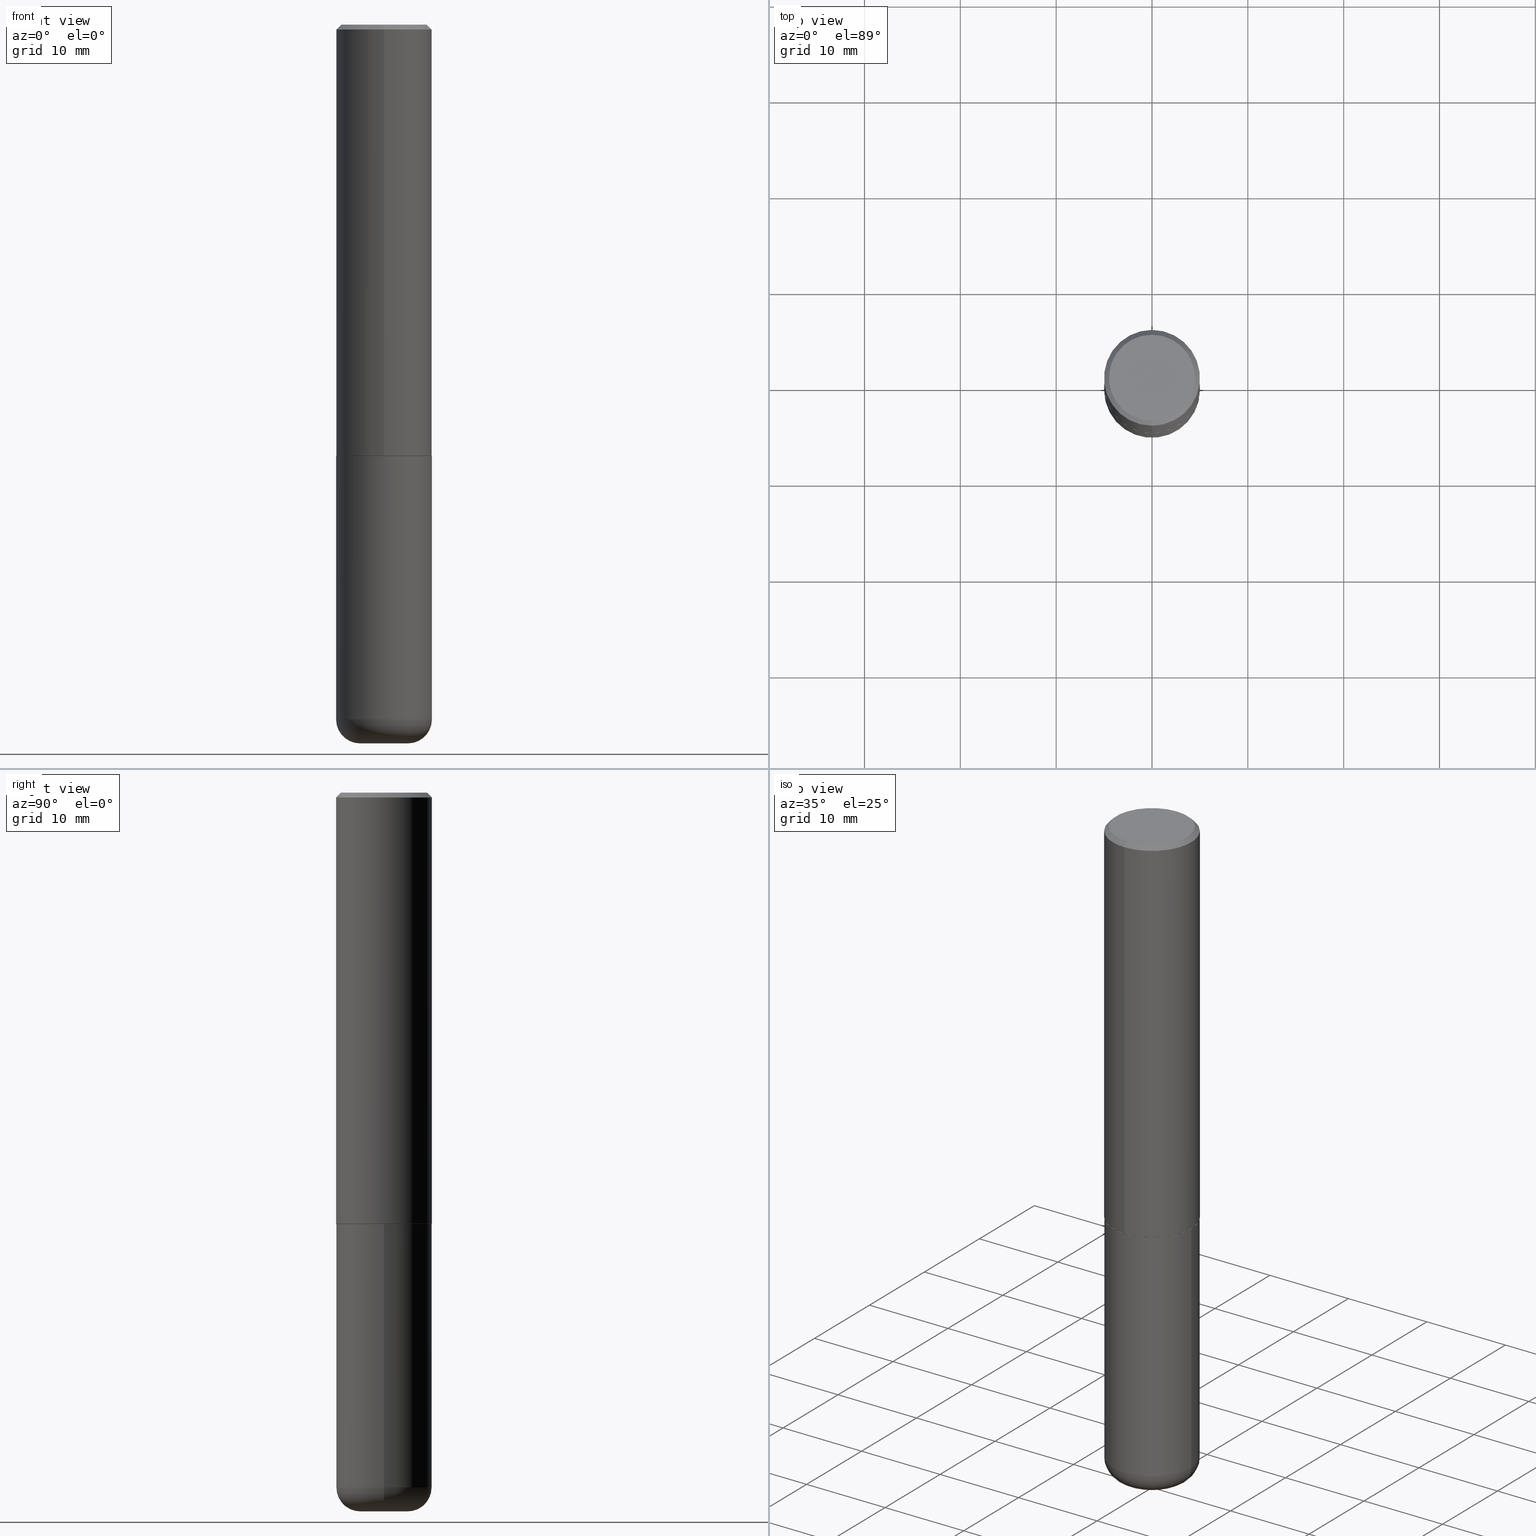
[diagram: canonical four-view strip — front | top / right | iso, engineering-drawing reading convention]
A machine part, canonical four-view strip (front | top / right | iso — engineering-drawing reading convention). The complete STEP part file that produces these views, byte-faithful:
ISO-10303-21;
HEADER;
FILE_DESCRIPTION (( 'STEP AP203' ),
    '1' );
FILE_NAME ('47530.STEP',
    '2024-03-06T07:44:59',
    ( '' ),
    ( '' ),
    'SwSTEP 2.0',
    'SolidWorks 2023',
    '' );
FILE_SCHEMA (( 'CONFIG_CONTROL_DESIGN' ));
ENDSEC;

DATA;
#1 = ORIENTED_EDGE ( 'NONE', *, *, #199, .T. ) ;
#3 = AXIS2_PLACEMENT_3D ( 'NONE', #74, #255, #385 ) ;
#2 = SECURITY_CLASSIFICATION_LEVEL ( 'unclassified' ) ;
#4 = CIRCLE ( 'NONE', #61, 0.09840000000000037605 ) ;
#5 = DIRECTION ( 'NONE',  ( 1.000000000000000000, -6.982962677686264344E-15, 4.883557194083112340E-29 ) ) ;
#6 = EDGE_CURVE ( 'NONE', #149, #117, #176, .T. ) ;
#7 = COORDINATED_UNIVERSAL_TIME_OFFSET ( 5, 0, .BEHIND. ) ;
#8 = LINE ( 'NONE', #207, #161 ) ;
#9 = VERTEX_POINT ( 'NONE', #370 ) ;
#10 = PERSON_AND_ORGANIZATION ( #89, #94 ) ;
#11 = DIRECTION ( 'NONE',  ( -2.443970379688463607E-29, 3.493627170871520955E-15, 1.000000000000000000 ) ) ;
#12 = ORIENTED_EDGE ( 'NONE', *, *, #383, .T. ) ;
#13 = PERSON_AND_ORGANIZATION ( #89, #94 ) ;
#14 = CIRCLE ( 'NONE', #167, 0.1968500000000000250 ) ;
#15 = DIRECTION ( 'NONE',  ( 1.000000000000000000, -6.982962677686267499E-15, 0.000000000000000000 ) ) ;
#16 = DATE_TIME_ROLE ( 'creation_date' ) ;
#17 = DIRECTION ( 'NONE',  ( -6.982962677686265922E-15, -1.000000000000000000, 3.493627170871520561E-15 ) ) ;
#18 = VERTEX_POINT ( 'NONE', #79 ) ;
#19 = DIRECTION ( 'NONE',  ( -2.443970379688463607E-29, 3.493627170871520955E-15, 1.000000000000000000 ) ) ;
#20 = VERTEX_POINT ( 'NONE', #409 ) ;
#21 = CARTESIAN_POINT ( 'NONE',  ( 5.937032679118867305E-45, -8.486919012809721302E-31, -2.429257215415053213E-16 ) ) ;
#22 = ORIENTED_EDGE ( 'NONE', *, *, #187, .T. ) ;
#23 = ORIENTED_EDGE ( 'NONE', *, *, #372, .T. ) ;
#24 = CARTESIAN_POINT ( 'NONE',  ( 4.332637083918205306E-29, -6.185857488028398715E-15, -1.771699999999999608 ) ) ;
#25 = DIRECTION ( 'NONE',  ( -6.982962677686265922E-15, -1.000000000000000000, 3.493627170871521350E-15 ) ) ;
#26 = UNCERTAINTY_MEASURE_WITH_UNIT (LENGTH_MEASURE( 1.000000000000000082E-05 ), #227, 'distance_accuracy_value', 'NONE');
#27 = CLOSED_SHELL ( 'NONE', ( #39, #65, #377, #36, #106, #309 ) ) ;
#28 = DIRECTION ( 'NONE',  ( 6.982962677686265133E-15, 1.000000000000000000, -3.491137977679279029E-15 ) ) ;
#29 = CONICAL_SURFACE ( 'NONE', #129, 0.1968500000000000527, 0.7853981633974479459 ) ;
#30 = AXIS2_PLACEMENT_3D ( 'NONE', #76, #175, #180 ) ;
#31 = CC_DESIGN_APPROVAL ( #293, ( #408 ) ) ;
#32 = CARTESIAN_POINT ( 'NONE',  ( 7.220980290903472425E-29, -1.030964609733604011E-14, -2.952800000000000313 ) ) ;
#33 = EDGE_CURVE ( 'NONE', #306, #265, #368, .T. ) ;
#34 = AXIS2_PLACEMENT_3D ( 'NONE', #297, #262, #264 ) ;
#35 = CARTESIAN_POINT ( 'NONE',  ( 0.000000000000000000, 0.000000000000000000, 0.000000000000000000 ) ) ;
#36 = ADVANCED_FACE ( 'NONE', ( #80 ), #407, .T. ) ;
#37 = DIRECTION ( 'NONE',  ( -6.982962677686265922E-15, -1.000000000000000000, 3.493627170871521350E-15 ) ) ;
#38 = CARTESIAN_POINT ( 'NONE',  ( 4.887940759376938213E-31, -6.987254341743056504E-17, -0.02000000000000004205 ) ) ;
#39 = ADVANCED_FACE ( 'NONE', ( #373 ), #298, .T. ) ;
#40 = ORIENTED_EDGE ( 'NONE', *, *, #45, .T. ) ;
#41 = APPROVAL_PERSON_ORGANIZATION ( #365, #287, #361 ) ;
#42 = EDGE_LOOP ( 'NONE', ( #135, #22, #220, #360 ) ) ;
#43 = CARTESIAN_POINT ( 'NONE',  ( 1.398703375343757985E-15, 0.1968500000000001360, -6.877205085860593881E-16 ) ) ;
#44 = ORIENTED_EDGE ( 'NONE', *, *, #111, .F. ) ;
#45 = EDGE_CURVE ( 'NONE', #306, #149, #313, .T. ) ;
#46 = ORIENTED_EDGE ( 'NONE', *, *, #271, .F. ) ;
#47 = CALENDAR_DATE ( 2024, 6, 3 ) ;
#48 = CARTESIAN_POINT ( 'NONE',  ( -1.367613240424812009E-15, -0.1958500000000061858, -1.771699999999998720 ) ) ;
#49 = CLOSED_SHELL ( 'NONE', ( #357, #170, #85, #380, #245, #174, #338, #256 ) ) ;
#50 = AXIS2_PLACEMENT_3D ( 'NONE', #312, #415, #344 ) ;
#51 = ORIENTED_EDGE ( 'NONE', *, *, #315, .F. ) ;
#52 = APPROVAL_ROLE ( '' ) ;
#53 = CARTESIAN_POINT ( 'NONE',  ( 4.332637083918205306E-29, -6.185857488028398715E-15, -1.771699999999999608 ) ) ;
#54 = DIRECTION ( 'NONE',  ( 1.000000000000000000, -6.982962677686265922E-15, 4.876176775795935793E-29 ) ) ;
#55 = VECTOR ( 'NONE', #57, 39.37007874015748143 ) ;
#56 = AXIS2_PLACEMENT_3D ( 'NONE', #381, #92, #351 ) ;
#57 = DIRECTION ( 'NONE',  ( -2.445468806185136877E-29, 3.491481338843145188E-15, 1.000000000000000000 ) ) ;
#58 = CARTESIAN_POINT ( 'NONE',  ( 4.329982321694049862E-29, -6.189659258633071898E-15, -1.771699999999999608 ) ) ;
#59 = CARTESIAN_POINT ( 'NONE',  ( -1.350489030861325626E-15, -0.1968500000000001082, -0.01999999999999935510 ) ) ;
#60 = DIRECTION ( 'NONE',  ( -2.443970379688463607E-29, 3.493627170871520955E-15, 1.000000000000000000 ) ) ;
#61 = AXIS2_PLACEMENT_3D ( 'NONE', #277, #224, #118 ) ;
#62 = AXIS2_PLACEMENT_3D ( 'NONE', #53, #273, #198 ) ;
#63 = DIRECTION ( 'NONE',  ( 4.937700262164545676E-15, 0.7071067811865447972, -0.7071067811865502373 ) ) ;
#64 = ORIENTED_EDGE ( 'NONE', *, *, #187, .F. ) ;
#65 = ADVANCED_FACE ( 'NONE', ( #374 ), #330, .T. ) ;
#66 = DIRECTION ( 'NONE',  ( -6.982962677686265922E-15, -1.000000000000000000, 4.184602492209747448E-15 ) ) ;
#67 = EDGE_LOOP ( 'NONE', ( #64, #182, #99, #196 ) ) ;
#68 = PERSON_AND_ORGANIZATION_ROLE ( 'creator' ) ;
#69 = ORIENTED_EDGE ( 'NONE', *, *, #237, .T. ) ;
#70 = CIRCLE ( 'NONE', #282, 0.1968500000000000250 ) ;
#71 = APPROVAL_PERSON_ORGANIZATION ( #169, #293, #52 ) ;
#72 = PRODUCT_RELATED_PRODUCT_CATEGORY ( 'detail', '', ( #130 ) ) ;
#73 = EDGE_LOOP ( 'NONE', ( #358, #247 ) ) ;
#74 = CARTESIAN_POINT ( 'NONE',  ( 6.980346160374851918E-29, -9.966084333593872426E-15, -2.854399999999999604 ) ) ;
#75 = APPROVAL_STATUS ( 'not_yet_approved' ) ;
#76 = CARTESIAN_POINT ( 'NONE',  ( -4.222142515148722183E-29, -2.669684925770544192E-14, -2.952800000000000313 ) ) ;
#77 = CIRCLE ( 'NONE', #34, 0.1968500000000000527 ) ;
#78 = PRODUCT_DEFINITION_FORMATION_WITH_SPECIFIED_SOURCE ( 'ANY', '', #130, .NOT_KNOWN. ) ;
#79 = CARTESIAN_POINT ( 'NONE',  ( -1.281884050883611478E-15, -0.1768500000000002570, 3.749222436271242413E-16 ) ) ;
#80 = FACE_OUTER_BOUND ( 'NONE', #392, .T. ) ;
#81 = CARTESIAN_POINT ( 'NONE',  ( 1.391597947986199181E-15, 0.1958499999999938346, -1.771700000000000497 ) ) ;
#82 = DIRECTION ( 'NONE',  ( -2.445468806185136597E-29, 3.491481338843145583E-15, 1.000000000000000000 ) ) ;
#83 = DIRECTION ( 'NONE',  ( -2.443970379688463607E-29, 3.493627170871520955E-15, 1.000000000000000000 ) ) ;
#84 = AXIS2_PLACEMENT_3D ( 'NONE', #270, #19, #366 ) ;
#85 = ADVANCED_FACE ( 'NONE', ( #399 ), #119, .T. ) ;
#86 = EDGE_LOOP ( 'NONE', ( #23, #238, #336, #396 ) ) ;
#87 = DIRECTION ( 'NONE',  ( 1.000000000000000000, -6.982962677686267499E-15, 0.000000000000000000 ) ) ;
#88 = CARTESIAN_POINT ( 'NONE',  ( 5.937032679118867305E-45, -8.486919012809721302E-31, -2.429257215415053213E-16 ) ) ;
#89 = PERSON ( 'UNSPECIFIED', 'UNSPECIFIED', 'UNSPECIFIED', ('UNSPECIFIED'), ('UNSPECIFIED'), ('UNSPECIFIED') ) ;
#90 = AXIS2_PLACEMENT_3D ( 'NONE', #32, #195, #190 ) ;
#91 = CC_DESIGN_SECURITY_CLASSIFICATION ( #168, ( #78 ) ) ;
#92 = DIRECTION ( 'NONE',  ( -2.443970379688463607E-29, 3.493627170871520955E-15, 1.000000000000000000 ) ) ;
#93 = AXIS2_PLACEMENT_3D ( 'NONE', #58, #122, #120 ) ;
#94 = ORGANIZATION ( 'UNSPECIFIED', 'UNSPECIFIED', '' ) ;
#95 = DIRECTION ( 'NONE',  ( -2.443970379688463607E-29, 3.493627170871520955E-15, 1.000000000000000000 ) ) ;
#96 = CALENDAR_DATE ( 2024, 6, 3 ) ;
#97 = FACE_OUTER_BOUND ( 'NONE', #67, .T. ) ;
#98 = EDGE_LOOP ( 'NONE', ( #324, #215, #230, #406 ) ) ;
#99 = ORIENTED_EDGE ( 'NONE', *, *, #410, .T. ) ;
#101 = VECTOR ( 'NONE', #305, 39.37007874015748143 ) ;
#100 = PERSON_AND_ORGANIZATION_ROLE ( 'design_owner' ) ;
#102 = AXIS2_PLACEMENT_3D ( 'NONE', #231, #194, #311 ) ;
#103 = DIRECTION ( 'NONE',  ( -6.982962677686265922E-15, -1.000000000000000000, 4.184602492209747448E-15 ) ) ;
#104 = APPROVAL_DATE_TIME ( #393, #226 ) ;
#105 = CARTESIAN_POINT ( 'NONE',  ( 0.09845000000000002360, -1.099711877295425424E-14, -2.952800000000000313 ) ) ;
#106 = ADVANCED_FACE ( 'NONE', ( #97 ), #412, .T. ) ;
#107 = ORIENTED_EDGE ( 'NONE', *, *, #326, .T. ) ;
#108 = DATE_AND_TIME ( #388, #353 ) ;
#109 = PLANE ( 'NONE',  #62 ) ;
#110 = ORIENTED_EDGE ( 'NONE', *, *, #221, .F. ) ;
#111 = EDGE_CURVE ( 'NONE', #114, #390, #411, .T. ) ;
#112 = LINE ( 'NONE', #81, #367 ) ;
#113 = CIRCLE ( 'NONE', #150, 0.1968500000000000250 ) ;
#114 = VERTEX_POINT ( 'NONE', #320 ) ;
#115 = ORIENTED_EDGE ( 'NONE', *, *, #216, .T. ) ;
#116 = CC_DESIGN_PERSON_AND_ORGANIZATION_ASSIGNMENT ( #261, #68, ( #78 ) ) ;
#117 = VERTEX_POINT ( 'NONE', #343 ) ;
#118 = DIRECTION ( 'NONE',  ( 1.000000000000000000, -6.982962677686273810E-15, 0.000000000000000000 ) ) ;
#119 = CONICAL_SURFACE ( 'NONE', #375, 0.1968500000000000527, 0.7853981633974479459 ) ;
#120 = DIRECTION ( 'NONE',  ( -6.982962677686265922E-15, -1.000000000000000000, 4.184602492209747448E-15 ) ) ;
#121 = APPROVAL_PERSON_ORGANIZATION ( #13, #226, #267 ) ;
#122 = DIRECTION ( 'NONE',  ( -2.443970379688463607E-29, 3.493627170871520955E-15, 1.000000000000000000 ) ) ;
#123 = DIRECTION ( 'NONE',  ( 1.000000000000000000, -6.982962677686267499E-15, 0.000000000000000000 ) ) ;
#124 = CC_DESIGN_PERSON_AND_ORGANIZATION_ASSIGNMENT ( #294, #100, ( #130 ) ) ;
#125 =( LENGTH_UNIT ( ) NAMED_UNIT ( * ) SI_UNIT ( $, .METRE. ) );
#126 = APPLICATION_PROTOCOL_DEFINITION ( 'international standard', 'config_control_design', 1994, #235 ) ;
#127 = EDGE_LOOP ( 'NONE', ( #233, #107, #285, #44 ) ) ;
#128 = DIRECTION ( 'NONE',  ( 2.443970379688463607E-29, -3.493627170871520561E-15, -1.000000000000000000 ) ) ;
#129 = AXIS2_PLACEMENT_3D ( 'NONE', #218, #371, #310 ) ;
#130 = PRODUCT ( '47530', '47530', '', ( #193 ) ) ;
#131 = APPROVAL_DATE_TIME ( #328, #293 ) ;
#132 = CARTESIAN_POINT ( 'NONE',  ( 0.1968500000000001915, -1.134068053669641561E-14, -2.854399999999999604 ) ) ;
#133 = EDGE_CURVE ( 'NONE', #9, #208, #201, .T. ) ;
#134 = DIRECTION ( 'NONE',  ( -4.937700262164969294E-15, -0.7071067811866054154, 0.7071067811864896191 ) ) ;
#135 = ORIENTED_EDGE ( 'NONE', *, *, #206, .T. ) ;
#136 = CC_DESIGN_PERSON_AND_ORGANIZATION_ASSIGNMENT ( #333, #139, ( #408 ) ) ;
#137 = DIRECTION ( 'NONE',  ( -4.851104656540961908E-15, -0.7071067811865496822, -0.7071067811865453523 ) ) ;
#138 = ORIENTED_EDGE ( 'NONE', *, *, #318, .F. ) ;
#139 = PERSON_AND_ORGANIZATION_ROLE ( 'creator' ) ;
#140 = CIRCLE ( 'NONE', #211, 0.1768500000000002570 ) ;
#141 = PRODUCT_DEFINITION_SHAPE ( 'NONE', 'NONE',  #408 ) ;
#142 = DIRECTION ( 'NONE',  ( -2.443970379688463326E-29, 3.493627170871520561E-15, 1.000000000000000000 ) ) ;
#143 = ORIENTED_EDGE ( 'NONE', *, *, #206, .F. ) ;
#144 = CALENDAR_DATE ( 2024, 6, 3 ) ;
#145 = FACE_OUTER_BOUND ( 'NONE', #292, .T. ) ;
#146 = ORIENTED_EDGE ( 'NONE', *, *, #33, .F. ) ;
#147 = MANIFOLD_SOLID_BREP ( 'Body-Move/Copy2[2]', #49 ) ;
#148 = DIRECTION ( 'NONE',  ( -6.982962677686265922E-15, -1.000000000000000000, 4.163344669033670112E-15 ) ) ;
#149 = VERTEX_POINT ( 'NONE', #132 ) ;
#150 = AXIS2_PLACEMENT_3D ( 'NONE', #228, #160, #123 ) ;
#151 = ORIENTED_EDGE ( 'NONE', *, *, #317, .F. ) ;
#152 = CC_DESIGN_PERSON_AND_ORGANIZATION_ASSIGNMENT ( #10, #258, ( #168 ) ) ;
#153 = DIRECTION ( 'NONE',  ( 1.000000000000000000, -6.982962677686265922E-15, 4.876176775795935793E-29 ) ) ;
#154 = CARTESIAN_POINT ( 'NONE',  ( 1.374596203102542200E-15, 0.1968499999999999694, -0.02000000000000072900 ) ) ;
#155 = CYLINDRICAL_SURFACE ( 'NONE', #359, 0.1968500000000001360 ) ;
#156 = CIRCLE ( 'NONE', #322, 0.1968500000000000527 ) ;
#157 = CARTESIAN_POINT ( 'NONE',  ( 1.374596203102542200E-15, 0.1968499999999999694, -0.02000000000000072900 ) ) ;
#158 = LOCAL_TIME ( 2, 44, 59.00000000000000000, #291 ) ;
#159 = DIRECTION ( 'NONE',  ( 5.024295867788490741E-15, 0.7071067811866103003, 0.7071067811864847341 ) ) ;
#160 = DIRECTION ( 'NONE',  ( -2.445468806185136597E-29, 3.491481338843145583E-15, 1.000000000000000000 ) ) ;
#161 = VECTOR ( 'NONE', #134, 39.37007874015748143 ) ;
#162 = DIRECTION ( 'NONE',  ( 0.000000000000000000, 0.000000000000000000, 1.000000000000000000 ) ) ;
#163 = ORIENTED_EDGE ( 'NONE', *, *, #334, .T. ) ;
#164 = PLANE ( 'NONE',  #405 ) ;
#165 = DIRECTION ( 'NONE',  ( -2.443970379688463607E-29, 3.493627170871520955E-15, 1.000000000000000000 ) ) ;
#166 = EDGE_CURVE ( 'NONE', #390, #205, #156, .T. ) ;
#167 = AXIS2_PLACEMENT_3D ( 'NONE', #401, #362, #404 ) ;
#168 = SECURITY_CLASSIFICATION ( '', '', #2 ) ;
#169 = PERSON_AND_ORGANIZATION ( #89, #94 ) ;
#170 = ADVANCED_FACE ( 'NONE', ( #389 ), #155, .T. ) ;
#171 = EDGE_LOOP ( 'NONE', ( #143, #110 ) ) ;
#172 = APPROVAL_STATUS ( 'not_yet_approved' ) ;
#173 = CARTESIAN_POINT ( 'NONE',  ( 4.327538351314362007E-29, -6.186165631462201115E-15, -1.770699999999999497 ) ) ;
#174 = ADVANCED_FACE ( 'NONE', ( #342 ), #244, .T. ) ;
#175 = DIRECTION ( 'NONE',  ( 2.438088387897960049E-29, -3.491481338843145188E-15, -1.000000000000000000 ) ) ;
#176 = LINE ( 'NONE', #276, #55 ) ;
#177 = COORDINATED_UNIVERSAL_TIME_OFFSET ( 5, 0, .BEHIND. ) ;
#178 = CARTESIAN_POINT ( 'NONE',  ( 4.329982321694049862E-29, -6.189659258633071898E-15, -1.771699999999999608 ) ) ;
#179 = EDGE_LOOP ( 'NONE', ( #263, #272, #51, #260 ) ) ;
#180 = DIRECTION ( 'NONE',  ( -1.000000000000000000, 6.982962677686265922E-15, -4.876176775795935793E-29 ) ) ;
#181 = VERTEX_POINT ( 'NONE', #185 ) ;
#182 = ORIENTED_EDGE ( 'NONE', *, *, #221, .T. ) ;
#183 = CIRCLE ( 'NONE', #416, 0.1958499999999999963 ) ;
#184 = CARTESIAN_POINT ( 'NONE',  ( 0.000000000000000000, 0.000000000000000000, 0.000000000000000000 ) ) ;
#185 = CARTESIAN_POINT ( 'NONE',  ( -0.09845000000000002360, -9.088748866115164767E-15, -2.952800000000000313 ) ) ;
#186 = CARTESIAN_POINT ( 'NONE',  ( 4.887940759376938213E-31, -6.987254341743056504E-17, -0.02000000000000004205 ) ) ;
#187 = EDGE_CURVE ( 'NONE', #181, #306, #341, .T. ) ;
#188 = AXIS2_PLACEMENT_3D ( 'NONE', #249, #240, #15 ) ;
#189 = CIRCLE ( 'NONE', #192, 0.1958499999999999963 ) ;
#190 = DIRECTION ( 'NONE',  ( 1.000000000000000000, -6.982962677686273021E-15, 0.000000000000000000 ) ) ;
#191 = CC_DESIGN_DATE_AND_TIME_ASSIGNMENT ( #300, #16, ( #408 ) ) ;
#192 = AXIS2_PLACEMENT_3D ( 'NONE', #394, #301, #103 ) ;
#193 = MECHANICAL_CONTEXT ( 'NONE', #235, 'mechanical' ) ;
#194 = DIRECTION ( 'NONE',  ( 7.105427357601001859E-15, 1.000000000000000000, -3.491481338843145583E-15 ) ) ;
#195 = DIRECTION ( 'NONE',  ( -2.445468806185136597E-29, 3.491481338843145583E-15, 1.000000000000000000 ) ) ;
#196 = ORIENTED_EDGE ( 'NONE', *, *, #45, .F. ) ;
#197 = APPROVAL_DATE_TIME ( #232, #287 ) ;
#198 = DIRECTION ( 'NONE',  ( -1.000000000000000000, 6.982962677686265922E-15, -4.876176775795935793E-29 ) ) ;
#199 = EDGE_CURVE ( 'NONE', #117, #265, #70, .T. ) ;
#200 = ORIENTED_EDGE ( 'NONE', *, *, #166, .F. ) ;
#201 = CIRCLE ( 'NONE', #307, 0.1968500000000002470 ) ;
#202 = CARTESIAN_POINT ( 'NONE',  ( -0.1968500000000000250, -6.677267535467378966E-15, -1.771699999999999608 ) ) ;
#203 = ORIENTED_EDGE ( 'NONE', *, *, #398, .F. ) ;
#204 = DIRECTION ( 'NONE',  ( 6.982962677686265922E-15, 1.000000000000000000, -3.493627170871520561E-15 ) ) ;
#205 = VERTEX_POINT ( 'NONE', #59 ) ;
#206 = EDGE_CURVE ( 'NONE', #339, #181, #266, .T. ) ;
#207 = CARTESIAN_POINT ( 'NONE',  ( -1.367613240424812009E-15, -0.1958500000000061858, -1.771699999999998720 ) ) ;
#208 = VERTEX_POINT ( 'NONE', #355 ) ;
#210 = VECTOR ( 'NONE', #137, 39.37007874015748143 ) ;
#209 = COORDINATED_UNIVERSAL_TIME_OFFSET ( 5, 0, .BEHIND. ) ;
#211 = AXIS2_PLACEMENT_3D ( 'NONE', #88, #60, #37 ) ;
#212 = PLANE ( 'NONE',  #219 ) ;
#213 = CARTESIAN_POINT ( 'NONE',  ( -0.1968500000000000250, 1.398703375343757393E-15, -9.682923725166783677E-30 ) ) ;
#214 = EDGE_CURVE ( 'NONE', #327, #20, #183, .T. ) ;
#215 = ORIENTED_EDGE ( 'NONE', *, *, #216, .F. ) ;
#216 = EDGE_CURVE ( 'NONE', #114, #18, #140, .T. ) ;
#217 = EDGE_LOOP ( 'NONE', ( #1, #69 ) ) ;
#218 = CARTESIAN_POINT ( 'NONE',  ( 4.887940759376938213E-31, -6.987254341743056504E-17, -0.02000000000000004205 ) ) ;
#219 = AXIS2_PLACEMENT_3D ( 'NONE', #178, #397, #17 ) ;
#220 = ORIENTED_EDGE ( 'NONE', *, *, #372, .F. ) ;
#221 = EDGE_CURVE ( 'NONE', #181, #339, #251, .T. ) ;
#222 = CARTESIAN_POINT ( 'NONE',  ( -1.374596203102542397E-15, -0.1968500000000001360, 6.877205085860593881E-16 ) ) ;
#223 = DIRECTION ( 'NONE',  ( -2.445468806185136597E-29, 3.491481338843145583E-15, 1.000000000000000000 ) ) ;
#224 = DIRECTION ( 'NONE',  ( -6.982962677686266711E-15, -1.000000000000000000, 3.491481338843145583E-15 ) ) ;
#225 = AXIS2_PLACEMENT_3D ( 'NONE', #21, #83, #25 ) ;
#226 = APPROVAL ( #75, 'UNSPECIFIED' ) ;
#227 =( CONVERSION_BASED_UNIT ( 'INCH', #382 ) LENGTH_UNIT ( ) NAMED_UNIT ( #369 ) );
#228 = CARTESIAN_POINT ( 'NONE',  ( 4.332637083918205306E-29, -6.185857488028398715E-15, -1.771699999999999608 ) ) ;
#229 = AXIS2_PLACEMENT_3D ( 'NONE', #253, #223, #5 ) ;
#230 = ORIENTED_EDGE ( 'NONE', *, *, #111, .T. ) ;
#231 = CARTESIAN_POINT ( 'NONE',  ( -0.09845000000000000973, -9.266555010238054316E-15, -2.854399999999999604 ) ) ;
#232 = DATE_AND_TIME ( #96, #283 ) ;
#233 = ORIENTED_EDGE ( 'NONE', *, *, #383, .F. ) ;
#234 = CALENDAR_DATE ( 2024, 6, 3 ) ;
#235 = APPLICATION_CONTEXT ( 'configuration controlled 3d designs of mechanical parts and assemblies' ) ;
#236 = FACE_OUTER_BOUND ( 'NONE', #171, .T. ) ;
#237 = EDGE_CURVE ( 'NONE', #265, #117, #113, .T. ) ;
#238 = ORIENTED_EDGE ( 'NONE', *, *, #33, .T. ) ;
#239 = DATE_TIME_ROLE ( 'classification_date' ) ;
#240 = DIRECTION ( 'NONE',  ( -2.445468806185136597E-29, 3.491481338843145583E-15, 1.000000000000000000 ) ) ;
#241 = APPROVAL_STATUS ( 'not_yet_approved' ) ;
#242 = LINE ( 'NONE', #303, #210 ) ;
#243 = EDGE_LOOP ( 'NONE', ( #115, #12 ) ) ;
#244 = CONICAL_SURFACE ( 'NONE', #93, 0.1958499999999999963, 0.7853981633975336552 ) ;
#245 = ADVANCED_FACE ( 'NONE', ( #281 ), #254, .T. ) ;
#246 = DIRECTION ( 'NONE',  ( -2.443970379688463326E-29, 3.493627170871520561E-15, 1.000000000000000000 ) ) ;
#247 = ORIENTED_EDGE ( 'NONE', *, *, #334, .F. ) ;
#248 = DIRECTION ( 'NONE',  ( -2.445468806185136597E-29, 3.491481338843145583E-15, 1.000000000000000000 ) ) ;
#249 = CARTESIAN_POINT ( 'NONE',  ( 6.980346160374851918E-29, -9.966084333593872426E-15, -2.854399999999999604 ) ) ;
#250 = LINE ( 'NONE', #222, #345 ) ;
#251 = CIRCLE ( 'NONE', #90, 0.09845000000000002360 ) ;
#252 = CARTESIAN_POINT ( 'NONE',  ( 4.327538351314362007E-29, -6.186165631462201115E-15, -1.770699999999999497 ) ) ;
#253 = CARTESIAN_POINT ( 'NONE',  ( 6.980346160374851918E-29, -9.966084333593872426E-15, -2.854399999999999604 ) ) ;
#254 = CYLINDRICAL_SURFACE ( 'NONE', #56, 0.1968500000000001360 ) ;
#255 = DIRECTION ( 'NONE',  ( -2.445468806185136597E-29, 3.491481338843145583E-15, 1.000000000000000000 ) ) ;
#256 = ADVANCED_FACE ( 'NONE', ( #319 ), #164, .F. ) ;
#257 = LOCAL_TIME ( 2, 44, 59.00000000000000000, #7 ) ;
#258 = PERSON_AND_ORGANIZATION_ROLE ( 'classification_officer' ) ;
#259 = DIRECTION ( 'NONE',  ( -6.982962677686265133E-15, -1.000000000000000000, 3.491137977679279029E-15 ) ) ;
#260 = ORIENTED_EDGE ( 'NONE', *, *, #413, .F. ) ;
#261 = PERSON_AND_ORGANIZATION ( #89, #94 ) ;
#262 = DIRECTION ( 'NONE',  ( -2.443970379688463607E-29, 3.493627170871520955E-15, 1.000000000000000000 ) ) ;
#263 = ORIENTED_EDGE ( 'NONE', *, *, #318, .T. ) ;
#264 = DIRECTION ( 'NONE',  ( -6.982962677686265133E-15, -1.000000000000000000, 3.491137977679279029E-15 ) ) ;
#265 = VERTEX_POINT ( 'NONE', #202 ) ;
#266 = CIRCLE ( 'NONE', #50, 0.09845000000000002360 ) ;
#267 = APPROVAL_ROLE ( '' ) ;
#268 = FACE_OUTER_BOUND ( 'NONE', #73, .T. ) ;
#269 = APPLICATION_PROTOCOL_DEFINITION ( 'international standard', 'config_control_design', 1994, #325 ) ;
#270 = CARTESIAN_POINT ( 'NONE',  ( 4.329982321694049862E-29, -6.189659258633071898E-15, -1.771699999999999608 ) ) ;
#271 = EDGE_CURVE ( 'NONE', #327, #208, #8, .T. ) ;
#272 = ORIENTED_EDGE ( 'NONE', *, *, #317, .T. ) ;
#273 = DIRECTION ( 'NONE',  ( 2.438088387897960049E-29, -3.491481338843145188E-15, -1.000000000000000000 ) ) ;
#274 = EDGE_LOOP ( 'NONE', ( #151, #275, #331, #200 ) ) ;
#275 = ORIENTED_EDGE ( 'NONE', *, *, #133, .T. ) ;
#276 = CARTESIAN_POINT ( 'NONE',  ( 0.1968500000000000250, -1.374596203102541608E-15, 9.598753983154300858E-30 ) ) ;
#277 = CARTESIAN_POINT ( 'NONE',  ( 0.09845000000000000973, -1.065355700921208656E-14, -2.854399999999999604 ) ) ;
#278 = DIRECTION ( 'NONE',  ( -2.445468806185136597E-29, 3.491481338843145583E-15, 1.000000000000000000 ) ) ;
#279 = CONICAL_SURFACE ( 'NONE', #84, 0.1958499999999999963, 0.7853981633975336552 ) ;
#280 = CARTESIAN_POINT ( 'NONE',  ( 4.329982321694049862E-29, -6.189659258633071898E-15, -1.771699999999999608 ) ) ;
#281 = FACE_OUTER_BOUND ( 'NONE', #274, .T. ) ;
#282 = AXIS2_PLACEMENT_3D ( 'NONE', #24, #278, #87 ) ;
#283 = LOCAL_TIME ( 2, 44, 59.00000000000000000, #209 ) ;
#284 = DIRECTION ( 'NONE',  ( 1.000000000000000000, 0.000000000000000000, 0.000000000000000000 ) ) ;
#285 = ORIENTED_EDGE ( 'NONE', *, *, #315, .T. ) ;
#286 = CARTESIAN_POINT ( 'NONE',  ( 1.234936949548817970E-15, 0.1768500000000002570, -7.393108259393820014E-16 ) ) ;
#287 = APPROVAL ( #241, 'UNSPECIFIED' ) ;
#288 = PERSON_AND_ORGANIZATION ( #89, #94 ) ;
#289 = DIRECTION ( 'NONE',  ( -2.443970379688463607E-29, 3.493627170871520955E-15, 1.000000000000000000 ) ) ;
#290 = CIRCLE ( 'NONE', #395, 0.1968500000000002470 ) ;
#291 = COORDINATED_UNIVERSAL_TIME_OFFSET ( 5, 0, .BEHIND. ) ;
#292 = EDGE_LOOP ( 'NONE', ( #296, #384, #138, #46 ) ) ;
#293 = APPROVAL ( #172, 'UNSPECIFIED' ) ;
#294 = PERSON_AND_ORGANIZATION ( #89, #94 ) ;
#295 = CARTESIAN_POINT ( 'NONE',  ( -0.1968500000000001915, -8.567380958250113850E-15, -2.854399999999999604 ) ) ;
#296 = ORIENTED_EDGE ( 'NONE', *, *, #214, .T. ) ;
#297 = CARTESIAN_POINT ( 'NONE',  ( 4.887940759376938213E-31, -6.987254341743056504E-17, -0.02000000000000004205 ) ) ;
#298 = CYLINDRICAL_SURFACE ( 'NONE', #350, 0.1968500000000000250 ) ;
#299 = LOCAL_TIME ( 2, 44, 59.00000000000000000, #363 ) ;
#300 = DATE_AND_TIME ( #234, #257 ) ;
#301 = DIRECTION ( 'NONE',  ( -2.443970379688463607E-29, 3.493627170871520955E-15, 1.000000000000000000 ) ) ;
#302 = ORIENTED_EDGE ( 'NONE', *, *, #271, .T. ) ;
#303 = CARTESIAN_POINT ( 'NONE',  ( -1.350489030861325626E-15, -0.1968500000000001082, -0.01999999999999935510 ) ) ;
#304 = CC_DESIGN_DATE_AND_TIME_ASSIGNMENT ( #108, #239, ( #168 ) ) ;
#305 = DIRECTION ( 'NONE',  ( -2.445468806185136877E-29, 3.491481338843145188E-15, 1.000000000000000000 ) ) ;
#306 = VERTEX_POINT ( 'NONE', #295 ) ;
#307 = AXIS2_PLACEMENT_3D ( 'NONE', #252, #165, #316 ) ;
#308 = CARTESIAN_POINT ( 'NONE',  ( 0.000000000000000000, 0.000000000000000000, 0.000000000000000000 ) ) ;
#309 = ADVANCED_FACE ( 'NONE', ( #236 ), #329, .T. ) ;
#310 = DIRECTION ( 'NONE',  ( 6.982962677686265133E-15, 1.000000000000000000, -3.491137977679279029E-15 ) ) ;
#311 = DIRECTION ( 'NONE',  ( -1.000000000000000000, 7.105427357601001859E-15, 0.000000000000000000 ) ) ;
#312 = CARTESIAN_POINT ( 'NONE',  ( 7.220980290903472425E-29, -1.030964609733604011E-14, -2.952800000000000313 ) ) ;
#313 = CIRCLE ( 'NONE', #188, 0.1968500000000000250 ) ;
#314 = VECTOR ( 'NONE', #142, 39.37007874015748143 ) ;
#315 = EDGE_CURVE ( 'NONE', #205, #390, #77, .T. ) ;
#316 = DIRECTION ( 'NONE',  ( -6.982962677686265922E-15, -1.000000000000000000, 4.163344669033670112E-15 ) ) ;
#317 = EDGE_CURVE ( 'NONE', #9, #390, #391, .T. ) ;
#318 = EDGE_CURVE ( 'NONE', #208, #9, #290, .T. ) ;
#319 = FACE_OUTER_BOUND ( 'NONE', #243, .T. ) ;
#320 = CARTESIAN_POINT ( 'NONE',  ( 1.304766576325680085E-15, 0.1768500000000002570, -8.607736867101346867E-16 ) ) ;
#321 = FACE_OUTER_BOUND ( 'NONE', #98, .T. ) ;
#322 = AXIS2_PLACEMENT_3D ( 'NONE', #38, #289, #259 ) ;
#323 = CC_DESIGN_APPROVAL ( #226, ( #78 ) ) ;
#324 = ORIENTED_EDGE ( 'NONE', *, *, #326, .F. ) ;
#325 = APPLICATION_CONTEXT ( 'configuration controlled 3d designs of mechanical parts and assemblies' ) ;
#326 = EDGE_CURVE ( 'NONE', #18, #205, #242, .T. ) ;
#327 = VERTEX_POINT ( 'NONE', #48 ) ;
#328 = DATE_AND_TIME ( #47, #158 ) ;
#329 = PLANE ( 'NONE',  #30 ) ;
#330 = TOROIDAL_SURFACE ( 'NONE', #3, 0.09845000000000000973, 0.09840000000000038993 ) ;
#331 = ORIENTED_EDGE ( 'NONE', *, *, #413, .T. ) ;
#332 =( GEOMETRIC_REPRESENTATION_CONTEXT ( 3 ) GLOBAL_UNCERTAINTY_ASSIGNED_CONTEXT ( ( #26 ) ) GLOBAL_UNIT_ASSIGNED_CONTEXT ( ( #227, #348, #347 ) ) REPRESENTATION_CONTEXT ( 'NONE', 'WORKASPACE' ) );
#333 = PERSON_AND_ORGANIZATION ( #89, #94 ) ;
#334 = EDGE_CURVE ( 'NONE', #20, #327, #189, .T. ) ;
#335 = FACE_OUTER_BOUND ( 'NONE', #217, .T. ) ;
#336 = ORIENTED_EDGE ( 'NONE', *, *, #199, .F. ) ;
#337 = ORIENTED_EDGE ( 'NONE', *, *, #237, .F. ) ;
#338 = ADVANCED_FACE ( 'NONE', ( #268 ), #212, .F. ) ;
#339 = VERTEX_POINT ( 'NONE', #105 ) ;
#340 = AXIS2_PLACEMENT_3D ( 'NONE', #308, #248, #153 ) ;
#341 = CIRCLE ( 'NONE', #102, 0.09840000000000037605 ) ;
#342 = FACE_OUTER_BOUND ( 'NONE', #364, .T. ) ;
#343 = CARTESIAN_POINT ( 'NONE',  ( 0.1968500000000000250, -7.560453691130941112E-15, -1.771699999999999608 ) ) ;
#344 = DIRECTION ( 'NONE',  ( 1.000000000000000000, -6.982962677686273021E-15, 0.000000000000000000 ) ) ;
#345 = VECTOR ( 'NONE', #246, 39.37007874015748143 ) ;
#346 = CC_DESIGN_APPROVAL ( #287, ( #168 ) ) ;
#347 =( NAMED_UNIT ( * ) SI_UNIT ( $, .STERADIAN. ) SOLID_ANGLE_UNIT ( ) );
#348 =( NAMED_UNIT ( * ) PLANE_ANGLE_UNIT ( ) SI_UNIT ( $, .RADIAN. ) );
#349 = CC_DESIGN_PERSON_AND_ORGANIZATION_ASSIGNMENT ( #288, #400, ( #78 ) ) ;
#350 = AXIS2_PLACEMENT_3D ( 'NONE', #184, #82, #54 ) ;
#351 = DIRECTION ( 'NONE',  ( -6.982962677686265922E-15, -1.000000000000000000, 3.493627170871520955E-15 ) ) ;
#352 = CIRCLE ( 'NONE', #225, 0.1768500000000002570 ) ;
#353 = LOCAL_TIME ( 2, 44, 59.00000000000000000, #177 ) ;
#354 = ORIENTED_EDGE ( 'NONE', *, *, #133, .F. ) ;
#355 = CARTESIAN_POINT ( 'NONE',  ( -1.374596203102499996E-15, -0.1968500000000064365, -1.770699999999998608 ) ) ;
#356 = SHAPE_DEFINITION_REPRESENTATION ( #141, #379 ) ;
#357 = ADVANCED_FACE ( 'NONE', ( #145 ), #279, .T. ) ;
#358 = ORIENTED_EDGE ( 'NONE', *, *, #214, .F. ) ;
#359 = AXIS2_PLACEMENT_3D ( 'NONE', #378, #95, #376 ) ;
#360 = ORIENTED_EDGE ( 'NONE', *, *, #410, .F. ) ;
#361 = APPROVAL_ROLE ( '' ) ;
#362 = DIRECTION ( 'NONE',  ( -2.445468806185136597E-29, 3.491481338843145583E-15, 1.000000000000000000 ) ) ;
#363 = COORDINATED_UNIVERSAL_TIME_OFFSET ( 5, 0, .BEHIND. ) ;
#364 = EDGE_LOOP ( 'NONE', ( #203, #163, #302, #354 ) ) ;
#365 = PERSON_AND_ORGANIZATION ( #89, #94 ) ;
#366 = DIRECTION ( 'NONE',  ( -6.982962677686265922E-15, -1.000000000000000000, 4.184602492209747448E-15 ) ) ;
#367 = VECTOR ( 'NONE', #159, 39.37007874015748143 ) ;
#368 = LINE ( 'NONE', #213, #101 ) ;
#369 = DIMENSIONAL_EXPONENTS ( 1.000000000000000000, 0.000000000000000000, 0.000000000000000000, 0.000000000000000000, 0.000000000000000000, 0.000000000000000000, 0.000000000000000000 ) ;
#370 = CARTESIAN_POINT ( 'NONE',  ( 1.398703375343780073E-15, 0.1968499999999940575, -1.770700000000000385 ) ) ;
#371 = DIRECTION ( 'NONE',  ( 2.443970379688463607E-29, -3.493627170871520955E-15, -1.000000000000000000 ) ) ;
#372 = EDGE_CURVE ( 'NONE', #149, #306, #14, .T. ) ;
#373 = FACE_OUTER_BOUND ( 'NONE', #86, .T. ) ;
#374 = FACE_OUTER_BOUND ( 'NONE', #42, .T. ) ;
#375 = AXIS2_PLACEMENT_3D ( 'NONE', #186, #418, #28 ) ;
#376 = DIRECTION ( 'NONE',  ( -6.982962677686265922E-15, -1.000000000000000000, 3.493627170871520955E-15 ) ) ;
#377 = ADVANCED_FACE ( 'NONE', ( #335 ), #109, .F. ) ;
#378 = CARTESIAN_POINT ( 'NONE',  ( 0.000000000000000000, 0.000000000000000000, 0.000000000000000000 ) ) ;
#379 = ADVANCED_BREP_SHAPE_REPRESENTATION ( '47530', ( #417, #147, #387 ), #332 ) ;
#380 = ADVANCED_FACE ( 'NONE', ( #321 ), #29, .T. ) ;
#381 = CARTESIAN_POINT ( 'NONE',  ( 0.000000000000000000, 0.000000000000000000, 0.000000000000000000 ) ) ;
#382 = LENGTH_MEASURE_WITH_UNIT ( LENGTH_MEASURE( 0.02539999999999999897 ), #125 );
#383 = EDGE_CURVE ( 'NONE', #18, #114, #352, .T. ) ;
#384 = ORIENTED_EDGE ( 'NONE', *, *, #398, .T. ) ;
#385 = DIRECTION ( 'NONE',  ( 1.000000000000000000, -6.982962677686264344E-15, 4.883557194083112340E-29 ) ) ;
#386 = VECTOR ( 'NONE', #63, 39.37007874015748143 ) ;
#387 = AXIS2_PLACEMENT_3D ( 'NONE', #35, #162, #284 ) ;
#388 = CALENDAR_DATE ( 2024, 6, 3 ) ;
#389 = FACE_OUTER_BOUND ( 'NONE', #179, .T. ) ;
#390 = VERTEX_POINT ( 'NONE', #154 ) ;
#391 = LINE ( 'NONE', #43, #314 ) ;
#392 = EDGE_LOOP ( 'NONE', ( #146, #40, #403, #337 ) ) ;
#393 = DATE_AND_TIME ( #144, #299 ) ;
#394 = CARTESIAN_POINT ( 'NONE',  ( 4.329982321694049862E-29, -6.189659258633071898E-15, -1.771699999999999608 ) ) ;
#395 = AXIS2_PLACEMENT_3D ( 'NONE', #173, #11, #148 ) ;
#396 = ORIENTED_EDGE ( 'NONE', *, *, #6, .F. ) ;
#397 = DIRECTION ( 'NONE',  ( -2.443970379688463607E-29, 3.493627170871520561E-15, 1.000000000000000000 ) ) ;
#398 = EDGE_CURVE ( 'NONE', #20, #9, #112, .T. ) ;
#399 = FACE_OUTER_BOUND ( 'NONE', #127, .T. ) ;
#400 = PERSON_AND_ORGANIZATION_ROLE ( 'design_supplier' ) ;
#401 = CARTESIAN_POINT ( 'NONE',  ( 6.980346160374851918E-29, -9.966084333593872426E-15, -2.854399999999999604 ) ) ;
#402 = DESIGN_CONTEXT ( 'detailed design', #325, 'design' ) ;
#403 = ORIENTED_EDGE ( 'NONE', *, *, #6, .T. ) ;
#404 = DIRECTION ( 'NONE',  ( 1.000000000000000000, -6.982962677686267499E-15, 0.000000000000000000 ) ) ;
#405 = AXIS2_PLACEMENT_3D ( 'NONE', #286, #128, #204 ) ;
#406 = ORIENTED_EDGE ( 'NONE', *, *, #166, .T. ) ;
#407 = CYLINDRICAL_SURFACE ( 'NONE', #340, 0.1968500000000000250 ) ;
#408 = PRODUCT_DEFINITION ( 'UNKNOWN', '', #78, #402 ) ;
#409 = CARTESIAN_POINT ( 'NONE',  ( 1.395150661665000474E-15, 0.1958499999999938346, -1.771700000000000497 ) ) ;
#410 = EDGE_CURVE ( 'NONE', #339, #149, #4, .T. ) ;
#411 = LINE ( 'NONE', #157, #386 ) ;
#412 = TOROIDAL_SURFACE ( 'NONE', #229, 0.09845000000000000973, 0.09840000000000038993 ) ;
#413 = EDGE_CURVE ( 'NONE', #208, #205, #250, .T. ) ;
#414 = DIRECTION ( 'NONE',  ( -2.443970379688463607E-29, 3.493627170871520955E-15, 1.000000000000000000 ) ) ;
#415 = DIRECTION ( 'NONE',  ( -2.445468806185136597E-29, 3.491481338843145583E-15, 1.000000000000000000 ) ) ;
#416 = AXIS2_PLACEMENT_3D ( 'NONE', #280, #414, #66 ) ;
#417 = MANIFOLD_SOLID_BREP ( 'Body-Move/Copy2[1]', #27 ) ;
#418 = DIRECTION ( 'NONE',  ( 2.443970379688463607E-29, -3.493627170871520955E-15, -1.000000000000000000 ) ) ;
ENDSEC;
END-ISO-10303-21;
